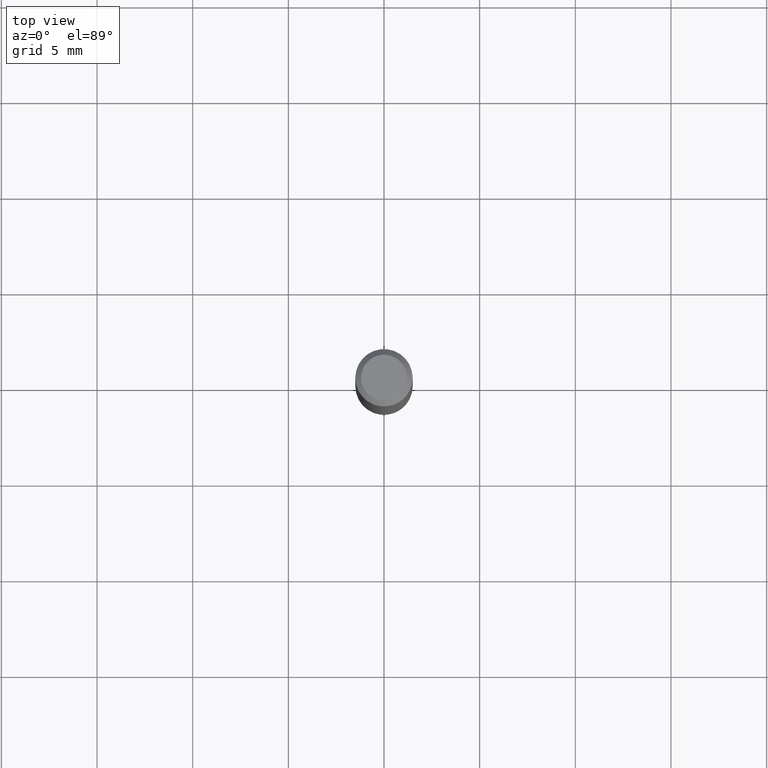
[diagram: clean part render]
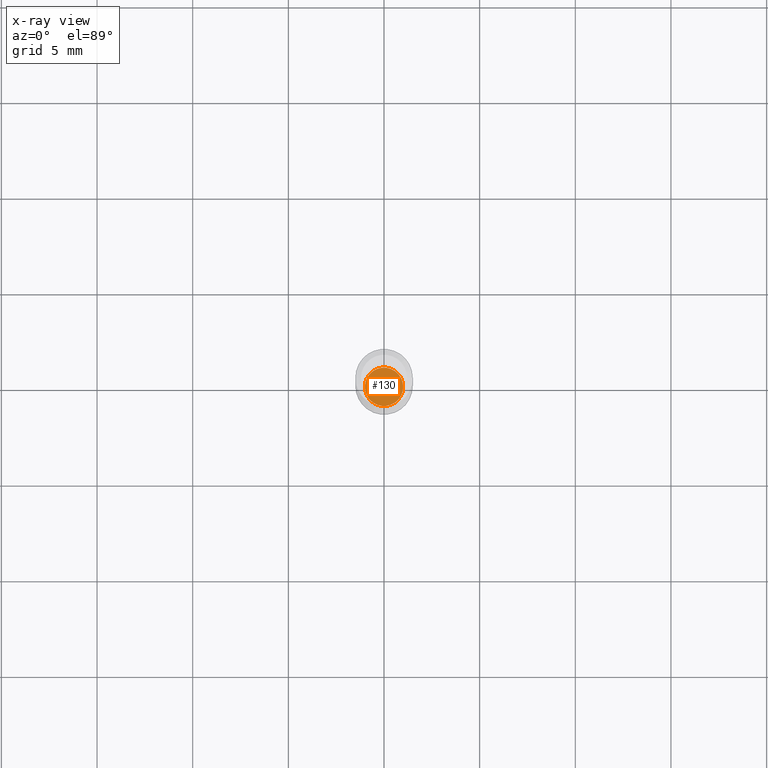
[diagram: x-ray — body ghosted, one internal face saturated and labeled with its STEP entity id]
A machine part, top view, then the same camera in x-ray: the body is ghosted and one INTERNAL B-rep face — a face not visible from any outside direction — is saturated and labeled: STEP entity #130.
In plain terms, the highlighted planar face has unit normal (-0, 0, 1).
Its self-contained STEP definition (entity closure, byte-faithful):
#13 = CIRCLE ( 'NONE', #194, 0.03944999999999999896 ) ;
#47 = DIRECTION ( 'NONE',  ( 1.000000000000000000, -6.982962677686263555E-15, 0.000000000000000000 ) ) ;
#51 = ORIENTED_EDGE ( 'NONE', *, *, #289, .F. ) ;
#52 = AXIS2_PLACEMENT_3D ( 'NONE', #437, #214, #365 ) ;
#76 = EDGE_CURVE ( 'NONE', #280, #208, #384, .T. ) ;
#86 = DIRECTION ( 'NONE',  ( -2.445468806185136597E-29, 3.491481338843145583E-15, 1.000000000000000000 ) ) ;
#120 = AXIS2_PLACEMENT_3D ( 'NONE', #145, #490, #295 ) ;
#122 = CARTESIAN_POINT ( 'NONE',  ( 2.676565608369631794E-29, -3.821426325363822773E-15, -1.094499999999999806 ) ) ;
#130 = ADVANCED_FACE ( 'NONE', ( #184 ), #334, .F. ) ;
#145 = CARTESIAN_POINT ( 'NONE',  ( 2.676565608369631794E-29, -3.821426325363822773E-15, -1.094499999999999806 ) ) ;
#147 = CARTESIAN_POINT ( 'NONE',  ( -0.03944999999999999896, -3.538467988932352155E-15, -1.094499999999999806 ) ) ;
#164 = ORIENTED_EDGE ( 'NONE', *, *, #76, .F. ) ;
#184 = FACE_OUTER_BOUND ( 'NONE', #315, .T. ) ;
#194 = AXIS2_PLACEMENT_3D ( 'NONE', #122, #86, #47 ) ;
#208 = VERTEX_POINT ( 'NONE', #147 ) ;
#214 = DIRECTION ( 'NONE',  ( -2.445468806185136597E-29, 3.491481338843145583E-15, 1.000000000000000000 ) ) ;
#280 = VERTEX_POINT ( 'NONE', #376 ) ;
#289 = EDGE_CURVE ( 'NONE', #208, #280, #13, .T. ) ;
#295 = DIRECTION ( 'NONE',  ( 1.000000000000000000, -6.982962677686265922E-15, 4.876176775795935793E-29 ) ) ;
#315 = EDGE_LOOP ( 'NONE', ( #164, #51 ) ) ;
#334 = PLANE ( 'NONE',  #120 ) ;
#365 = DIRECTION ( 'NONE',  ( 1.000000000000000000, -6.982962677686263555E-15, 0.000000000000000000 ) ) ;
#376 = CARTESIAN_POINT ( 'NONE',  ( 0.03944999999999999896, -4.096904202998545503E-15, -1.094499999999999806 ) ) ;
#384 = CIRCLE ( 'NONE', #52, 0.03944999999999999896 ) ;
#437 = CARTESIAN_POINT ( 'NONE',  ( 2.676565608369631794E-29, -3.821426325363822773E-15, -1.094499999999999806 ) ) ;
#490 = DIRECTION ( 'NONE',  ( -2.438088387897960049E-29, 3.491481338843145188E-15, 1.000000000000000000 ) ) ;